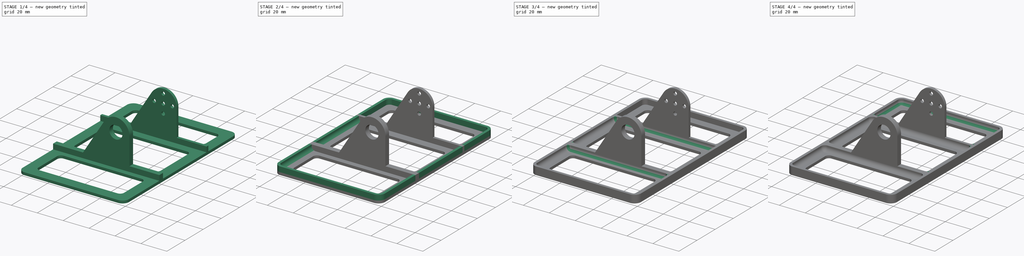
[diagram: build sequence overview — one tinted view per stage of 4, left to right]
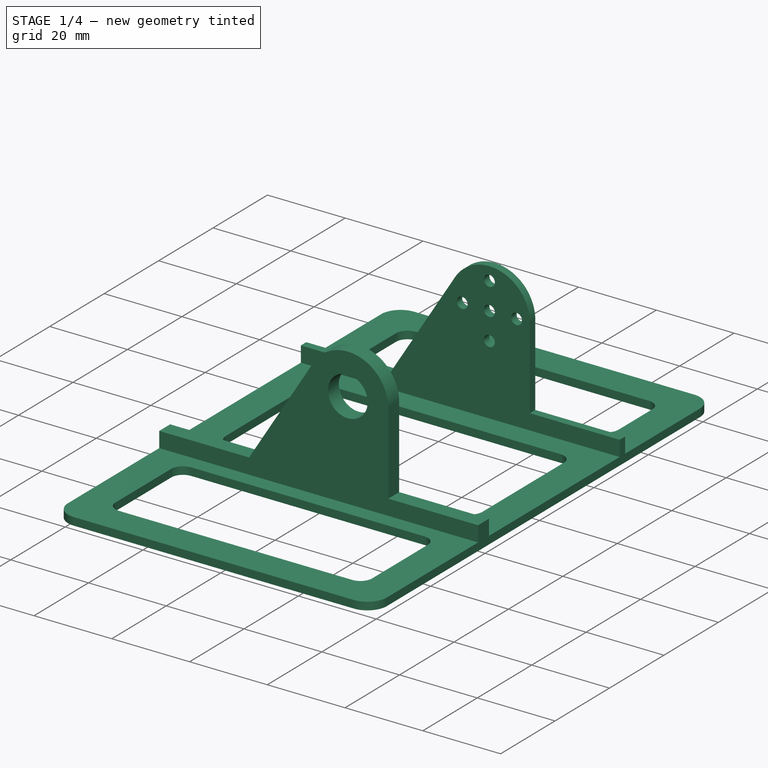
[diagram: stage 1 of 4 — iso view after this stage's code; geometry added in this stage tinted green]
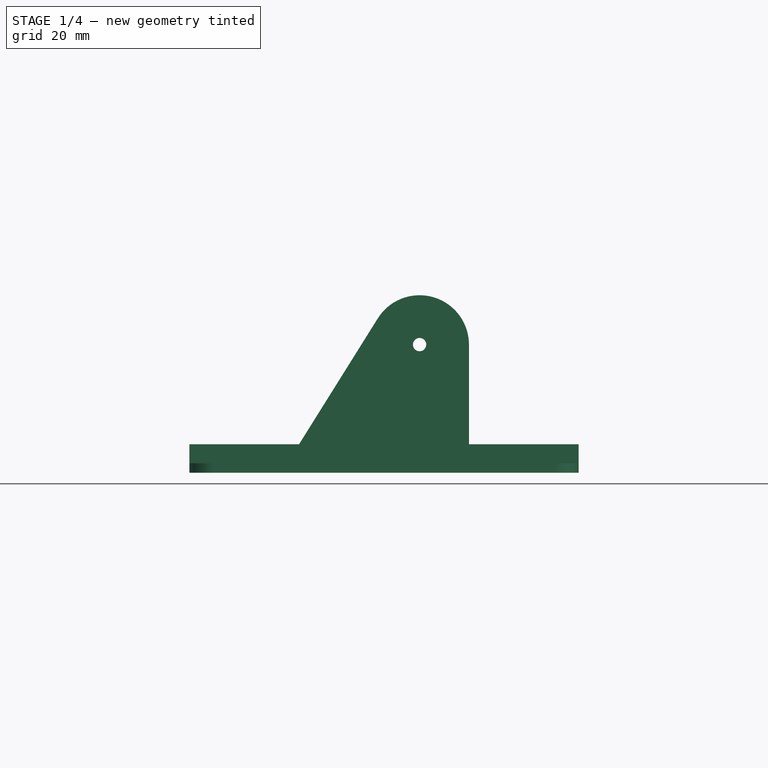
[diagram: stage 1 of 4 — front view after this stage's code; geometry added in this stage tinted green]
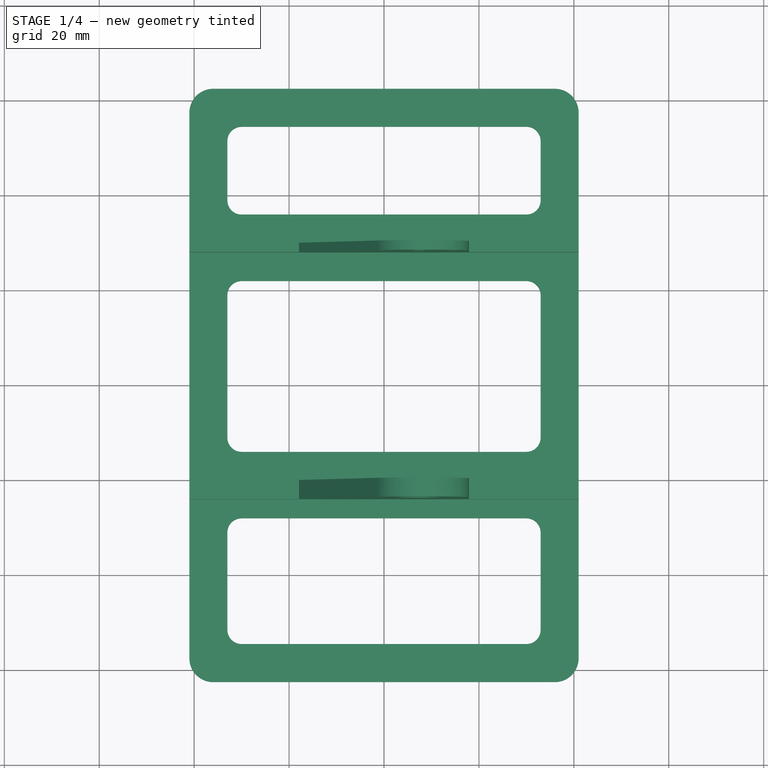
[diagram: stage 1 of 4 — top view after this stage's code; geometry added in this stage tinted green]
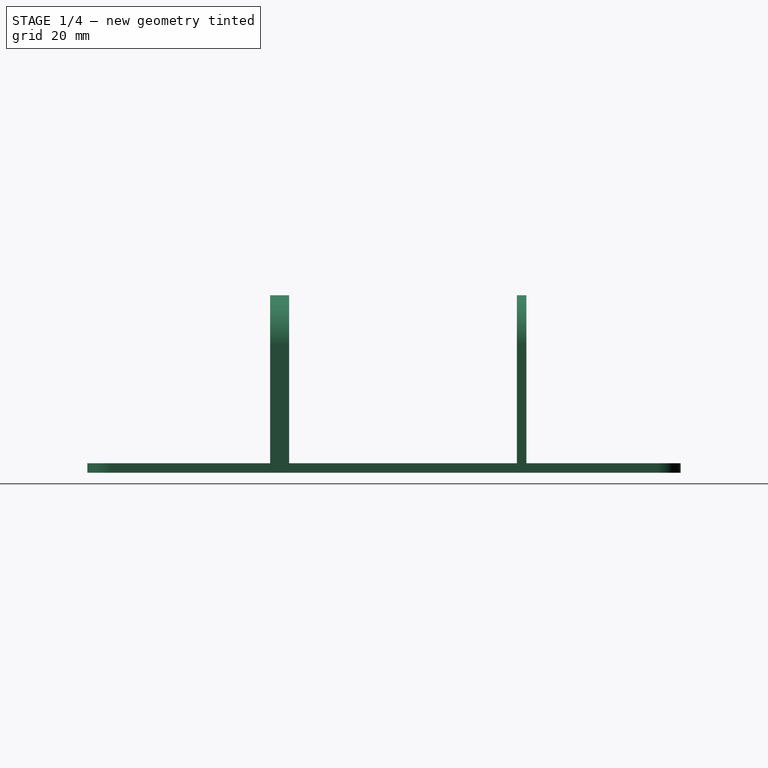
[diagram: stage 1 of 4 — right view after this stage's code; geometry added in this stage tinted green]
FCSTD DOCUMENT  (FreeCAD 0.20R29177 +426 (Git))
Label: 1R_foot_bearing
License: All rights reserved
LicenseURL: http://en.wikipedia.org/wiki/All_rights_reserved
objects: PartDesign::Fillet×8, Sketcher::SketchObject×4, PartDesign::Pad×4, Spreadsheet::Sheet×1, PartDesign::Body×1
note: 29 computed .brp shape members not serialized (recipe doc carries the construction recipe); baked Part::Feature solids carry a one-line shape summary decoded from their .brp

FEATURE [Spreadsheet::Sheet] Spreadsheet
  cells = A2=thickness; B2(thickness)=2; A3=rim_height; B3(rim_height)=4; A4=foot_width; B4(foot_width)=82; A5=foot_length; B5(foot_length)=125; A6=foot_diameter; B6(foot_diameter)=5; A7=foot_whole_middle_length; B7(foot_whole_middle_length)=40; A8=foot_whole_back_length; B8(foot_whole_front_length)=23; A9=foot_whole_front_length; B9(foot_whole_back_length)=13; A10=foot_side_distance; B10(foot_side_distance)=6; A11=foot_frontback_distance; B11(foot_frontback_distance)=6; A13=tarsus_radius; B13(tarsus_radius)=10; A14=tarsus_width; B14(tarsus_width)=35; A15=tarsus_height; B15(tarsus_height)=35; A16=tarsus_length; B16(tarsus_length)=49; A17=tarsus_x_pos; B17(tarsus_x_pos)=7.5; A18=tarsus_front_y_pos; B18(tarsus_front_y_pos)=30; C18=c; D18==-0.5 + B2 + B16 / 2; A19=tarsus_back_y_pos; B19(tarsus_back_y_pos)=-20; C19=c; D19==-(B16 / 2) + 0.5; A21=screw_distance; B21(screw_distance)=7; A22=screw_center_height; B22(screw_center_height)=25; A23=screw_dia; B23(screw_dia)=2.8; A24=axis_dia; B24(axis_dia)=7; A25=axis_dia_bearing; B25(axis_dia_bearing)=10.2
FEATURE [Sketcher::SketchObject] Sketch  label="plate_sketch"
  FullyConstrained = true
  MapMode = 5
  Support = -> [XY_Plane]
  expr: Constraints[23] = Spreadsheet.foot_diameter
  expr: Constraints[24] = Spreadsheet.foot_diameter
  expr: Constraints[25] = Spreadsheet.foot_diameter
  expr: Constraints[3] = Spreadsheet.foot_width
  expr: Constraints[48] = Spreadsheet.tarsus_front_y_pos + Spreadsheet.foot_frontback_distance
  expr: Constraints[49] = Spreadsheet.thickness + Spreadsheet.foot_frontback_distance
  expr: Constraints[4] = Spreadsheet.foot_length
  expr: Constraints[50] = Spreadsheet.thickness + Spreadsheet.foot_side_distance
  expr: Constraints[71] = Spreadsheet.thickness + Spreadsheet.foot_frontback_distance
  expr: Constraints[72] = Spreadsheet.thickness + Spreadsheet.foot_side_distance
  expr: Constraints[73] = -Spreadsheet.tarsus_back_y_pos + Spreadsheet.foot_frontback_distance + Spreadsheet.thickness
  expr: Constraints[94] = Spreadsheet.foot_side_distance + Spreadsheet.thickness
  expr: Constraints[95] = Spreadsheet.thickness + Spreadsheet.foot_frontback_distance * 2
  expr: Constraints[96] = Spreadsheet.thickness + 2 * Spreadsheet.foot_frontback_distance
  sketch-geometry (43):
    g0: LineSegment StartX=-36 StartY=62.5 StartZ=0 EndX=36 EndY=62.5 EndZ=0
    g1: LineSegment StartX=41 StartY=57.5 StartZ=0 EndX=41 EndY=-57.5 EndZ=0
    g2: LineSegment StartX=36 StartY=-62.5 StartZ=0 EndX=-36 EndY=-62.5 EndZ=0
    g3: LineSegment StartX=-41 StartY=-57.5 StartZ=0 EndX=-41 EndY=57.5 EndZ=0
    g4: GeomPoint X=0 Y=-62.5 Z=0
    g5: ArcOfCircle CenterX=36 CenterY=57.5 CenterZ=0 NormalX=0 NormalY=0 NormalZ=1 AngleXU=0 Radius=5 StartAngle=-9e-16 EndAngle=1.5708
    g6: GeomPoint X=41 Y=62.5 Z=0
    g7: ArcOfCircle CenterX=-36 CenterY=57.5 CenterZ=0 NormalX=0 NormalY=0 NormalZ=1 AngleXU=0 Radius=5 StartAngle=1.5708 EndAngle=3.14159
    g8: GeomPoint X=-41 Y=62.5 Z=0
    g9: ArcOfCircle CenterX=-36 CenterY=-57.5 CenterZ=0 NormalX=0 NormalY=0 NormalZ=1 AngleXU=0 Radius=5 StartAngle=3.14159 EndAngle=4.71239
    g10: GeomPoint X=-41 Y=-62.5 Z=0
    g11: ArcOfCircle CenterX=36 CenterY=-57.5 CenterZ=0 NormalX=0 NormalY=0 NormalZ=1 AngleXU=0 Radius=5 StartAngle=4.71239 EndAngle=6.28319
    g12: GeomPoint X=41 Y=-62.5 Z=0
    g13: ArcOfCircle CenterX=-30 CenterY=51.5 CenterZ=0 NormalX=0 NormalY=0 NormalZ=1 AngleXU=0 Radius=3 StartAngle=1.5708 EndAngle=3.14159
    g14: LineSegment StartX=-30 StartY=54.5 StartZ=0 EndX=30 EndY=54.5 EndZ=0
    g15: ArcOfCircle CenterX=30 CenterY=51.5 CenterZ=0 NormalX=0 NormalY=0 NormalZ=1 AngleXU=0 Radius=3 StartAngle=4e-16 EndAngle=1.5708
    g16: LineSegment StartX=33 StartY=51.5 StartZ=0 EndX=33 EndY=39 EndZ=0
    g17: ArcOfCircle CenterX=30 CenterY=39 CenterZ=0 NormalX=0 NormalY=0 NormalZ=1 AngleXU=0 Radius=3 StartAngle=4.71239 EndAngle=6.28319
    g18: LineSegment StartX=30 StartY=36 StartZ=0 EndX=-30 EndY=36 EndZ=0
    g19: ArcOfCircle CenterX=-30 CenterY=39 CenterZ=0 NormalX=0 NormalY=0 NormalZ=1 AngleXU=0 Radius=3 StartAngle=3.14159 EndAngle=4.71239
    g20: LineSegment StartX=-33 StartY=39 StartZ=0 EndX=-33 EndY=51.5 EndZ=0
    g21: GeomPoint X=-33 Y=54.5 Z=0
    g22: GeomPoint X=33 Y=36 Z=0
    g23: ArcOfCircle CenterX=-30 CenterY=-31 CenterZ=0 NormalX=0 NormalY=0 NormalZ=1 AngleXU=0 Radius=3 StartAngle=1.5708 EndAngle=3.14159
    g24: LineSegment StartX=-30 StartY=-28 StartZ=0 EndX=30 EndY=-28 EndZ=0
    g25: ArcOfCircle CenterX=30 CenterY=-31 CenterZ=0 NormalX=0 NormalY=0 NormalZ=1 AngleXU=0 Radius=3 StartAngle=0 EndAngle=1.5708
    g26: LineSegment StartX=33 StartY=-31 StartZ=0 EndX=33 EndY=-51.5 EndZ=0
    g27: ArcOfCircle CenterX=30 CenterY=-51.5 CenterZ=0 NormalX=0 NormalY=0 NormalZ=1 AngleXU=0 Radius=3 StartAngle=4.71239 EndAngle=6.28319
    g28: LineSegment StartX=30 StartY=-54.5 StartZ=0 EndX=-30 EndY=-54.5 EndZ=0
    g29: ArcOfCircle CenterX=-30 CenterY=-51.5 CenterZ=0 NormalX=0 NormalY=0 NormalZ=1 AngleXU=0 Radius=3 StartAngle=3.14159 EndAngle=4.71239
    g30: LineSegment StartX=-33 StartY=-51.5 StartZ=0 EndX=-33 EndY=-31 EndZ=0
    g31: GeomPoint X=-33 Y=-28 Z=0
    g32: GeomPoint X=33 Y=-54.5 Z=0
    g33: ArcOfCircle CenterX=-30 CenterY=19 CenterZ=0 NormalX=0 NormalY=0 NormalZ=1 AngleXU=0 Radius=3 StartAngle=1.5708 EndAngle=3.14159
    g34: LineSegment StartX=-30 StartY=22 StartZ=0 EndX=30 EndY=22 EndZ=0
    g35: ArcOfCircle CenterX=30 CenterY=19 CenterZ=0 NormalX=0 NormalY=0 NormalZ=1 AngleXU=0 Radius=3 StartAngle=7e-16 EndAngle=1.5708
    g36: LineSegment StartX=33 StartY=19 StartZ=0 EndX=33 EndY=-11 EndZ=0
    g37: ArcOfCircle CenterX=30 CenterY=-11 CenterZ=0 NormalX=0 NormalY=0 NormalZ=1 AngleXU=0 Radius=3 StartAngle=4.71239 EndAngle=6.28319
    g38: LineSegment StartX=30 StartY=-14 StartZ=0 EndX=-30 EndY=-14 EndZ=0
    g39: ArcOfCircle CenterX=-30 CenterY=-11 CenterZ=0 NormalX=0 NormalY=0 NormalZ=1 AngleXU=0 Radius=3 StartAngle=3.14159 EndAngle=4.71239
    g40: LineSegment StartX=-33 StartY=-11 StartZ=0 EndX=-33 EndY=19 EndZ=0
    g41: GeomPoint X=-33 Y=22 Z=0
    g42: GeomPoint X=33 Y=-14 Z=0
  constraints (97):
    c: Horizontal(g0)
    c: Horizontal(g2)
    c: Vertical(g1)
    c: DistanceX(g8,g6) = 82
    c: DistanceY(g12,g6) = 125
    c: PointOnObject(g4,g2)
    c: PointOnObject(g4,g-2)
    c: PointOnObject(g6,g0)
    c: PointOnObject(g6,g1)
    c: Tangent(g0,g5) = 1.5708
    c: Tangent(g1,g5) = 1.5708
    c: PointOnObject(g8,g0)
    c: PointOnObject(g8,g3)
    c: Tangent(g0,g7) = 1.5708
    c: Tangent(g3,g7) = 1.5708
    c: PointOnObject(g10,g2)
    c: PointOnObject(g10,g3)
    c: Tangent(g2,g9) = 1.5708
    c: Tangent(g3,g9) = 1.5708
    c: PointOnObject(g12,g1)
    c: PointOnObject(g12,g2)
    c: Tangent(g1,g11) = 1.5708
    c: Tangent(g2,g11) = 1.5708
    c: DistanceY(g2,g9) = 5
    c: DistanceY(g2,g11) = 5
    c: DistanceY(g5,g0) = 5
    c: Symmetric(g3,g1,g-2)
    c: Symmetric(g0,g2,g-1)
    c: Tangent(g13,g14) = 1.5708
    c: Tangent(g14,g15) = 1.5708
    c: Tangent(g15,g16) = 1.5708
    c: Tangent(g16,g17) = 1.5708
    c: Tangent(g17,g18) = 1.5708
    c: Tangent(g18,g19) = 1.5708
    c: Tangent(g19,g20) = 1.5708
    c: Tangent(g20,g13) = 1.5708
    c: Horizontal(g14)
    c: Horizontal(g18)
    c: Vertical(g16)
    c: Vertical(g20)
    c: Equal(g15,g17)
    c: Equal(g17,g19)
    c: PointOnObject(g21,g14)
    c: PointOnObject(g21,g20)
    c: PointOnObject(g22,g16)
    c: PointOnObject(g22,g18)
    c: Symmetric(g13,g15,g-2)
    c: DistanceY(g13,g13) = 3
    c: DistanceY(g-1,g18) = 36
    c: DistanceY(g13,g0) = 8
    c: DistanceX(g3,g13) = 8
    c: Tangent(g23,g24) = 1.5708
    c: Tangent(g24,g25) = 1.5708
    c: Tangent(g25,g26) = 1.5708
    c: Tangent(g26,g27) = 1.5708
    c: Tangent(g27,g28) = 1.5708
    c: Tangent(g28,g29) = 1.5708
    c: Tangent(g29,g30) = 1.5708
    c: Tangent(g30,g23) = 1.5708
    c: Horizontal(g24)
    c: Horizontal(g28)
    c: Vertical(g26)
    c: Vertical(g30)
    c: Equal(g25,g27)
    c: Equal(g27,g29)
    c: PointOnObject(g31,g24)
    c: PointOnObject(g31,g30)
    c: PointOnObject(g32,g26)
    c: PointOnObject(g32,g28)
    c: Symmetric(g23,g25,g-2)
    c: DistanceY(g23,g23) = 3
    c: DistanceY(g2,g28) = 8
    c: DistanceX(g3,g29) = 8
    c: DistanceY(g23,g-1) = 28
    c: Tangent(g33,g34) = 1.5708
    c: Tangent(g34,g35) = 1.5708
    c: Tangent(g35,g36) = 1.5708
    c: Tangent(g36,g37) = 1.5708
    c: Tangent(g37,g38) = 1.5708
    c: Tangent(g38,g39) = 1.5708
    c: Tangent(g39,g40) = 1.5708
    c: Tangent(g40,g33) = 1.5708
    c: Horizontal(g34)
    c: Horizontal(g38)
    c: Vertical(g36)
    c: Vertical(g40)
    c: Equal(g35,g37)
    c: Equal(g37,g39)
    c: PointOnObject(g41,g34)
    c: PointOnObject(g41,g40)
    c: PointOnObject(g42,g36)
    c: PointOnObject(g42,g38)
    c: Symmetric(g33,g35,g-2)
    c: DistanceY(g33,g33) = 3
    c: DistanceX(g3,g39) = 8
    c: DistanceY(g24,g37) = 14
    c: DistanceY(g34,g17) = 14
FEATURE [PartDesign::Pad] Pad  label="foot_plate"
  Direction = (0,0,1)
  Length = 2
  Length2 = 10
  Profile = -> Sketch
  ReferenceAxis = -> Sketch [N_Axis]
  Type = 0
  expr: Length = Spreadsheet.thickness
FEATURE [Sketcher::SketchObject] Sketch001  label="back_tarsus_sketch"
  ExternalGeometry = -> [Pad]
  FullyConstrained = true
  Placement = pos=(7.5,-20,0) rot=(1,0,0;1.5708rad)
  Support = -> [XZ_Plane]
  expr: .Placement.Base.x = Spreadsheet.tarsus_x_pos
  expr: .Placement.Base.y = Spreadsheet.tarsus_back_y_pos
  expr: Constraints[10] = Spreadsheet.foot_width
  expr: Constraints[13] = Spreadsheet.rim_height
  expr: Constraints[22] = Spreadsheet.axis_dia_bearing
  expr: Constraints[23] = Spreadsheet.screw_center_height
  expr: Constraints[26] = Spreadsheet.screw_distance + Spreadsheet.thickness + Spreadsheet.screw_dia / 2
  expr: Constraints[27] = Spreadsheet.thickness
  sketch-geometry (10):
    g0: LineSegment StartX=10.4 StartY=27 StartZ=0 EndX=10.4 EndY=6 EndZ=0
    g1: LineSegment StartX=-25.4 StartY=6 StartZ=0 EndX=-8.81756 EndY=32.5146 EndZ=0
    g2: ArcOfCircle CenterX=0 CenterY=27 CenterZ=0 NormalX=0 NormalY=0 NormalZ=1 AngleXU=0 Radius=10.4 StartAngle=0 EndAngle=2.5827
    g3: GeomPoint X=0 Y=2 Z=0
    g4: LineSegment StartX=-48.5 StartY=2 StartZ=0 EndX=33.5 EndY=2 EndZ=0
    g5: LineSegment StartX=33.5 StartY=2 StartZ=0 EndX=33.5 EndY=6 EndZ=0
    g6: LineSegment StartX=33.5 StartY=6 StartZ=0 EndX=10.4 EndY=6 EndZ=0
    g7: LineSegment StartX=-25.4 StartY=6 StartZ=0 EndX=-48.5 EndY=6 EndZ=0
    g8: LineSegment StartX=-48.5 StartY=6 StartZ=0 EndX=-48.5 EndY=2 EndZ=0
    g9: Circle CenterX=0 CenterY=27 CenterZ=0 NormalX=0 NormalY=0 NormalZ=1 AngleXU=0 Radius=5.1
  constraints (29):
    c: Vertical(g0)
    c: PointOnObject(g3,g-2)
    c: Horizontal(g4)
    c: Coincident(g5,g4)
    c: Vertical(g5)
    c: Horizontal(g6)
    c: Horizontal(g7)
    c: Coincident(g8,g7)
    c: Coincident(g8,g4)
    c: Vertical(g8)
    c: DistanceX(g4,g4) = 82
    c: DistanceX(g3,g4) = 33.5
    c: Coincident(g6,g5)
    c: DistanceY(g4,g5) = 4
    c: Equal(g5,g8)
    c: Equal(g7,g6)
    c: Coincident(g0,g6)
    c: Coincident(g1,g7)
    c: Tangent(g1,g2) = 1.5708
    c: Coincident(g2,g0)
    c: PointOnObject(g2,g-2)
    c: PointOnObject(g9,g-2)
    c: Diameter(g9) = 10.2
    c: DistanceY(g3,g9) = 25
    c: Horizontal(g0,g9)
    c: PointOnObject(g3,g4)
    c: DistanceX(g9,g0) = 10.4
    c: DistanceY(g-1,g4) = 2
    c: Horizontal(g2,g0)
FEATURE [PartDesign::Pad] Pad001  label="back_tarsus"
  BaseFeature = -> Pad
  Direction = (0,-1,2e-16)
  Length = 4
  Length2 = 0
  Profile = -> Sketch001
  ReferenceAxis = -> Sketch001 [N_Axis]
  Type = 0
  expr: Length = 4
FEATURE [Sketcher::SketchObject] Sketch003  label="front_tarsus_sketch"
  FullyConstrained = true
  Placement = pos=(7.5,30,0) rot=(1,0,0;1.5708rad)
  Support = -> [XZ_Plane]
  expr: .Placement.Base.x = Spreadsheet.tarsus_x_pos
  expr: .Placement.Base.y = Spreadsheet.tarsus_front_y_pos
  expr: Constraints[0] = Spreadsheet.thickness
  expr: Constraints[10] = Spreadsheet.screw_distance
  expr: Constraints[1] = Spreadsheet.screw_dia
  expr: Constraints[20] = Spreadsheet.rim_height
  expr: Constraints[22] = Spreadsheet.foot_width
  expr: Constraints[24] = Spreadsheet.screw_center_height
  expr: Constraints[27] = Spreadsheet.screw_distance
  expr: Constraints[30] = Spreadsheet.screw_distance
  expr: Constraints[40] = Spreadsheet.screw_distance + Spreadsheet.thickness + Spreadsheet.screw_dia / 2
  expr: Constraints[42] = Spreadsheet.screw_distance + Spreadsheet.thickness + Spreadsheet.screw_dia / 2
  expr: Constraints[4] = Spreadsheet.screw_dia
  expr: Constraints[5] = Spreadsheet.screw_dia
  expr: Constraints[6] = Spreadsheet.screw_dia
  expr: Constraints[7] = Spreadsheet.screw_dia
  expr: Constraints[9] = Spreadsheet.screw_distance
  sketch-geometry (16):
    g0: LineSegment StartX=33.5 StartY=2 StartZ=0 EndX=-48.5 EndY=2 EndZ=0
    g1: ArcOfCircle CenterX=0 CenterY=27 CenterZ=0 NormalX=0 NormalY=0 NormalZ=1 AngleXU=0 Radius=10.4 StartAngle=-2.283e-13 EndAngle=2.5827
    g2: Circle CenterX=0 CenterY=27 CenterZ=0 NormalX=0 NormalY=0 NormalZ=1 AngleXU=0 Radius=1.4
    g3: Circle CenterX=-7 CenterY=27 CenterZ=0 NormalX=0 NormalY=0 NormalZ=1 AngleXU=0 Radius=1.4
    g4: Circle CenterX=0 CenterY=20 CenterZ=0 NormalX=0 NormalY=0 NormalZ=1 AngleXU=0 Radius=1.4
    g5: Circle CenterX=7 CenterY=27 CenterZ=0 NormalX=0 NormalY=0 NormalZ=1 AngleXU=0 Radius=1.4
    g6: Circle CenterX=0 CenterY=34 CenterZ=0 NormalX=0 NormalY=0 NormalZ=1 AngleXU=0 Radius=1.4
    g7: GeomPoint X=0 Y=2 Z=0
    g8: GeomPoint X=-25.4 Y=6 Z=0
    g9: LineSegment StartX=10.4 StartY=27 StartZ=0 EndX=10.4 EndY=6 EndZ=0
    g10: LineSegment StartX=-8.81756 StartY=32.5146 StartZ=0 EndX=-25.4 EndY=6 EndZ=0
    g11: LineSegment StartX=-25.4 StartY=6 StartZ=0 EndX=-48.5 EndY=6 EndZ=0
    g12: LineSegment StartX=-48.5 StartY=6 StartZ=0 EndX=-48.5 EndY=2 EndZ=0
    g13: LineSegment StartX=10.4 StartY=6 StartZ=0 EndX=33.5 EndY=6 EndZ=0
    g14: LineSegment StartX=33.5 StartY=6 StartZ=0 EndX=33.5 EndY=2 EndZ=0
    g15: GeomPoint X=0 Y=37.4 Z=0
  constraints (44):
    c: DistanceY(g-1,g0) = 2
    c: Diameter(g2) = 2.8
    c: PointOnObject(g4,g-2)
    c: PointOnObject(g6,g-2)
    c: Diameter(g3) = 2.8
    c: Diameter(g5) = 2.8
    c: Diameter(g4) = 2.8
    c: Diameter(g6) = 2.8
    c: PointOnObject(g7,g0)
    c: DistanceX(g3,g1) = 7
    c: DistanceX(g1,g5) = 7
    c: PointOnObject(g1,g-2)
    c: PointOnObject(g7,g-2)
    c: Coincident(g9,g1)
    c: Vertical(g9)
    c: Coincident(g10,g8)
    c: Coincident(g11,g10)
    c: Horizontal(g11)
    c: Coincident(g12,g11)
    c: Coincident(g12,g0)
    c: DistanceY(g0,g11) = 4
    c: Vertical(g12)
    c: DistanceX(g0,g0) = 82
    c: DistanceX(g4,g0) = 33.5
    c: DistanceY(g7,g2) = 25
    c: Horizontal(g3,g2)
    c: Horizontal(g2,g5)
    c: DistanceY(g4,g2) = 7
    c: Horizontal(g0)
    c: Vertical(g2,g7)
    c: DistanceY(g2,g6) = 7
    c: Coincident(g13,g9)
    c: Horizontal(g13)
    c: Coincident(g14,g13)
    c: Coincident(g14,g0)
    c: Vertical(g14)
    c: Equal(g12,g14)
    c: Tangent(g10,g1) = -1.5708
    c: Horizontal(g1,g2)
    c: PointOnObject(g15,g1)
    c: DistanceY(g2,g15) = 10.4
    c: Equal(g13,g11)
    c: DistanceX(g2,g1) = 10.4
    c: Vertical(g15,g2)
FEATURE [PartDesign::Pad] Pad003  label="front_tarsus"
  BaseFeature = -> Pad001
  Direction = (0,-1,2e-16)
  Length = 2
  Length2 = 0
  Profile = -> Sketch003
  ReferenceAxis = -> Sketch003 [N_Axis]
  Type = 0
  expr: Length = 2
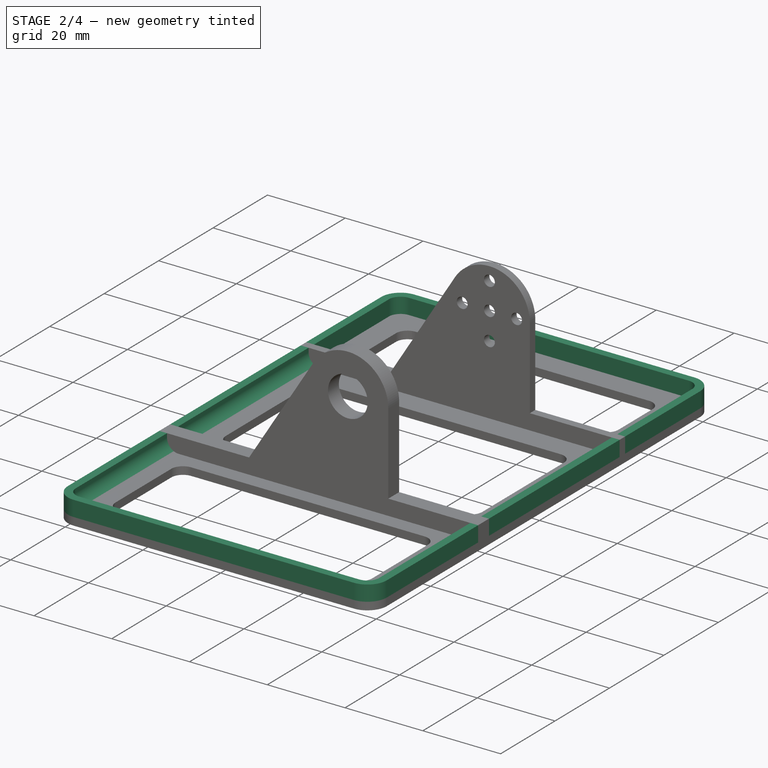
[diagram: stage 2 of 4 — iso view after this stage's code; geometry added in this stage tinted green]
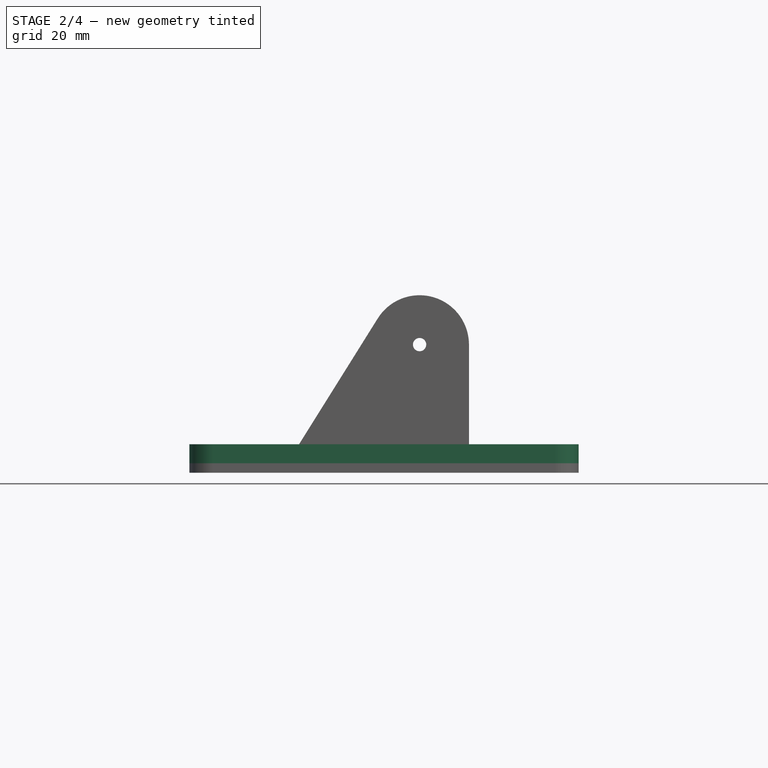
[diagram: stage 2 of 4 — front view after this stage's code; geometry added in this stage tinted green]
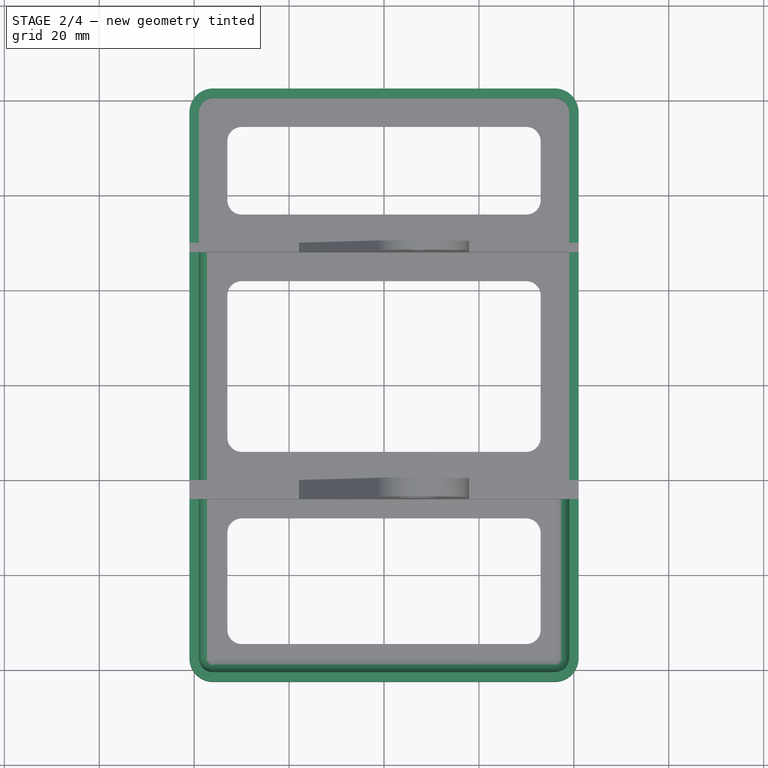
[diagram: stage 2 of 4 — top view after this stage's code; geometry added in this stage tinted green]
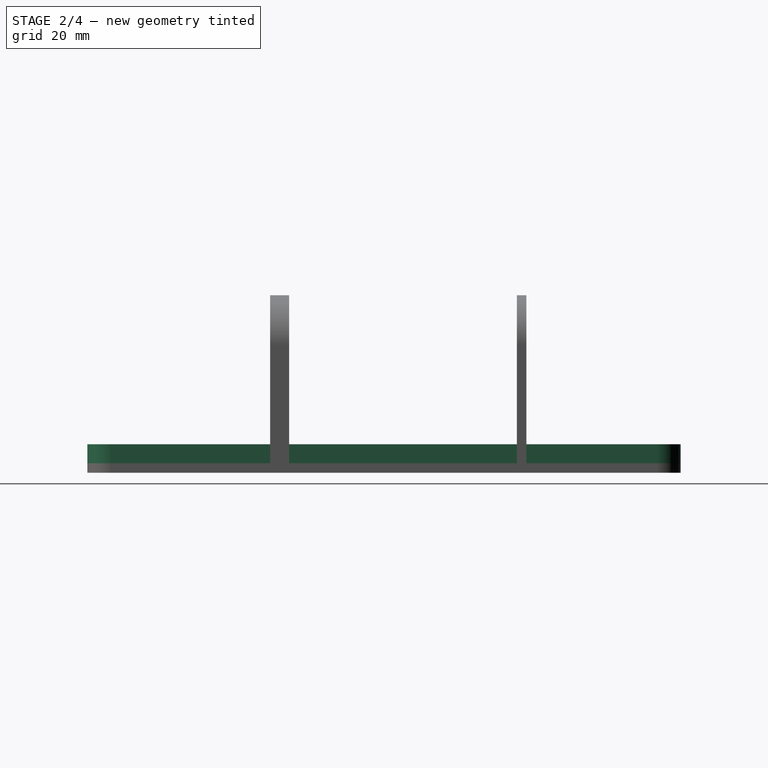
[diagram: stage 2 of 4 — right view after this stage's code; geometry added in this stage tinted green]
FEATURE [Sketcher::SketchObject] Sketch004  label="outerRimSketch"
  ExternalGeometry = -> [Pad003]
  FullyConstrained = true
  MapMode = 5
  Placement = pos=(0,0,2) rot=(0,0,1;0rad)
  Support = -> [Pad003]
  expr: Constraints[32] = Spreadsheet.thickness
  expr: Constraints[33] = Spreadsheet.thickness
  expr: Constraints[37] = Spreadsheet.thickness
  sketch-geometry (16):
    g0: LineSegment StartX=-36 StartY=62.5 StartZ=0 EndX=36 EndY=62.5 EndZ=0
    g1: LineSegment StartX=-41 StartY=57.5 StartZ=0 EndX=-41 EndY=-57.5 EndZ=0
    g2: ArcOfCircle CenterX=-36 CenterY=57.5 CenterZ=0 NormalX=0 NormalY=0 NormalZ=1 AngleXU=0 Radius=5 StartAngle=1.5708 EndAngle=3.14159
    g3: ArcOfCircle CenterX=-36 CenterY=-57.5 CenterZ=0 NormalX=0 NormalY=0 NormalZ=1 AngleXU=0 Radius=5 StartAngle=3.14159 EndAngle=4.71239
    g4: LineSegment StartX=-36 StartY=-62.5 StartZ=0 EndX=36 EndY=-62.5 EndZ=0
    g5: ArcOfCircle CenterX=36 CenterY=-57.5 CenterZ=0 NormalX=0 NormalY=0 NormalZ=1 AngleXU=0 Radius=5 StartAngle=4.71239 EndAngle=6.28319
    g6: LineSegment StartX=41 StartY=-57.5 StartZ=0 EndX=41 EndY=57.5 EndZ=0
    g7: ArcOfCircle CenterX=36 CenterY=57.5 CenterZ=0 NormalX=0 NormalY=0 NormalZ=1 AngleXU=0 Radius=5 StartAngle=6e-16 EndAngle=1.5708
    g8: LineSegment StartX=-36 StartY=60.5 StartZ=0 EndX=36 EndY=60.5 EndZ=0
    g9: LineSegment StartX=39 StartY=57.5 StartZ=0 EndX=39 EndY=-57.5 EndZ=0
    g10: LineSegment StartX=36 StartY=-60.5 StartZ=0 EndX=-36 EndY=-60.5 EndZ=0
    g11: LineSegment StartX=-39 StartY=-57.5 StartZ=0 EndX=-39 EndY=57.5 EndZ=0
    g12: ArcOfCircle CenterX=-36 CenterY=57.5 CenterZ=0 NormalX=0 NormalY=0 NormalZ=1 AngleXU=0 Radius=3 StartAngle=1.5708 EndAngle=3.14159
    g13: ArcOfCircle CenterX=36 CenterY=57.5 CenterZ=0 NormalX=0 NormalY=0 NormalZ=1 AngleXU=0 Radius=3 StartAngle=3e-16 EndAngle=1.5708
    g14: ArcOfCircle CenterX=36 CenterY=-57.5 CenterZ=0 NormalX=0 NormalY=0 NormalZ=1 AngleXU=0 Radius=3 StartAngle=4.71239 EndAngle=6.28319
    g15: ArcOfCircle CenterX=-36 CenterY=-57.5 CenterZ=0 NormalX=0 NormalY=0 NormalZ=1 AngleXU=0 Radius=3 StartAngle=3.14159 EndAngle=4.71239
  constraints (40):
    c: Coincident(g0,g-8)
    c: Coincident(g2,g0)
    c: Coincident(g1,g-9)
    c: Coincident(g2,g1)
    c: Coincident(g0,g-8)
    c: Coincident(g7,g0)
    c: Coincident(g6,g-11)
    c: Coincident(g7,g6)
    c: Coincident(g6,g-11)
    c: Coincident(g6,g5)
    c: Coincident(g-10,g4)
    c: Coincident(g4,g5)
    c: Coincident(g-9,g1)
    c: Coincident(g3,g1)
    c: Coincident(g4,g-10)
    c: Coincident(g3,g4)
    c: Horizontal(g3,g5)
    c: Vertical(g3,g2)
    c: Horizontal(g2,g7)
    c: Horizontal(g3,g-6)
    c: Horizontal(g8)
    c: Horizontal(g10)
    c: Vertical(g9)
    c: Vertical(g11)
    c: Tangent(g8,g12) = 1.5708
    c: Tangent(g11,g12) = 1.5708
    c: Tangent(g8,g13) = 1.5708
    c: Tangent(g9,g13) = 1.5708
    c: Tangent(g9,g14) = 1.5708
    c: Tangent(g10,g14) = 1.5708
    c: Tangent(g10,g15) = 1.5708
    c: Tangent(g11,g15) = 1.5708
    c: DistanceY(g3,g10) = 2
    c: DistanceX(g1,g11) = 2
    c: Horizontal(g15,g14)
    c: Vertical(g15,g12)
    c: Horizontal(g11,g1)
    c: DistanceY(g8,g0) = 2
    c: Vertical(g8,g0)
    c: Horizontal(g9,g6)
FEATURE [PartDesign::Pad] Pad004  label="outerRimPad"
  BaseFeature = -> Pad003
  Direction = (0,0,1)
  Length = 4
  Length2 = 10
  Profile = -> Sketch004
  ReferenceAxis = -> Sketch004 [N_Axis]
  Type = 0
  expr: Length = Spreadsheet.rim_height
FEATURE [PartDesign::Fillet] Fillet
  Base = -> Pad004 [Edge146]
  BaseFeature = -> Pad004
  Radius = 3
  SupportTransform = false
  UseAllEdges = false
FEATURE [PartDesign::Fillet] Fillet001
  Base = -> Fillet [Edge203]
  BaseFeature = -> Fillet
  Radius = 3
  SupportTransform = false
  UseAllEdges = false
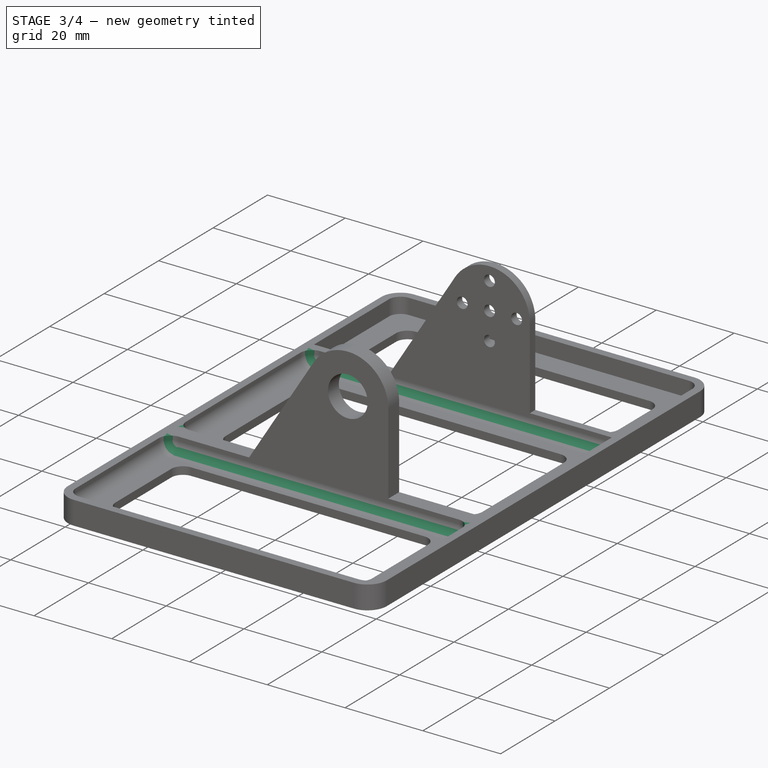
[diagram: stage 3 of 4 — iso view after this stage's code; geometry added in this stage tinted green]
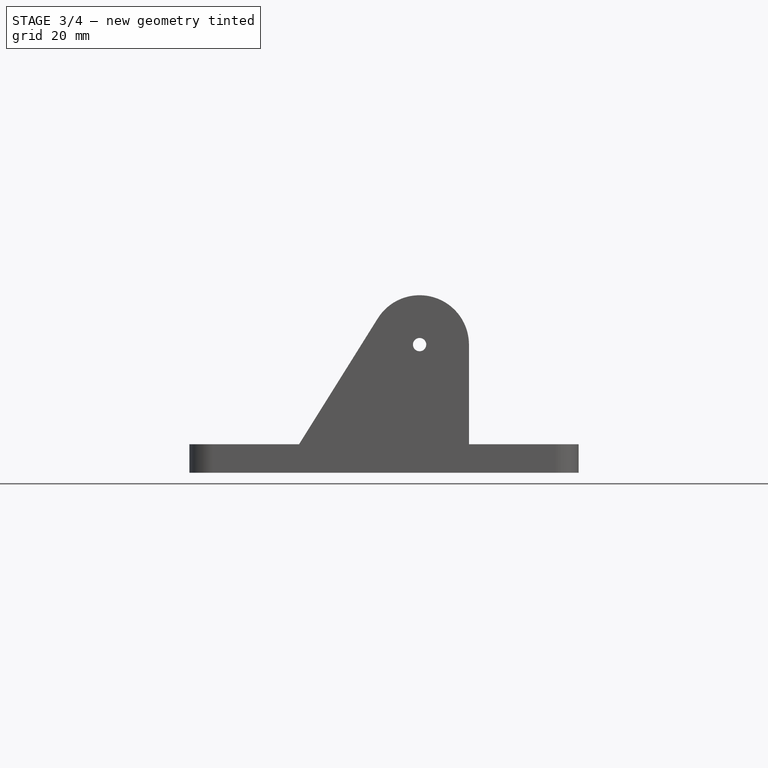
[diagram: stage 3 of 4 — front view after this stage's code; geometry added in this stage tinted green]
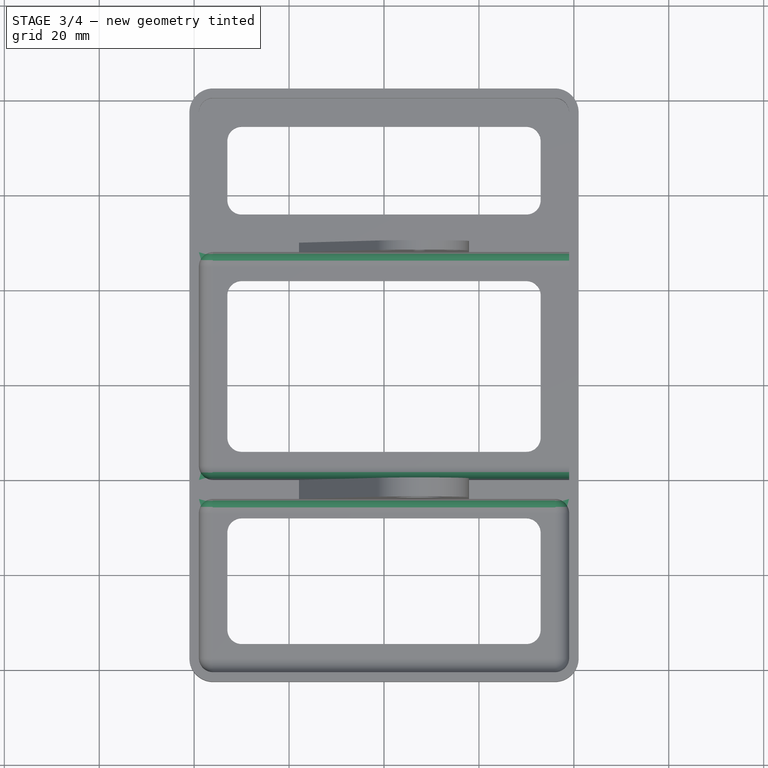
[diagram: stage 3 of 4 — top view after this stage's code; geometry added in this stage tinted green]
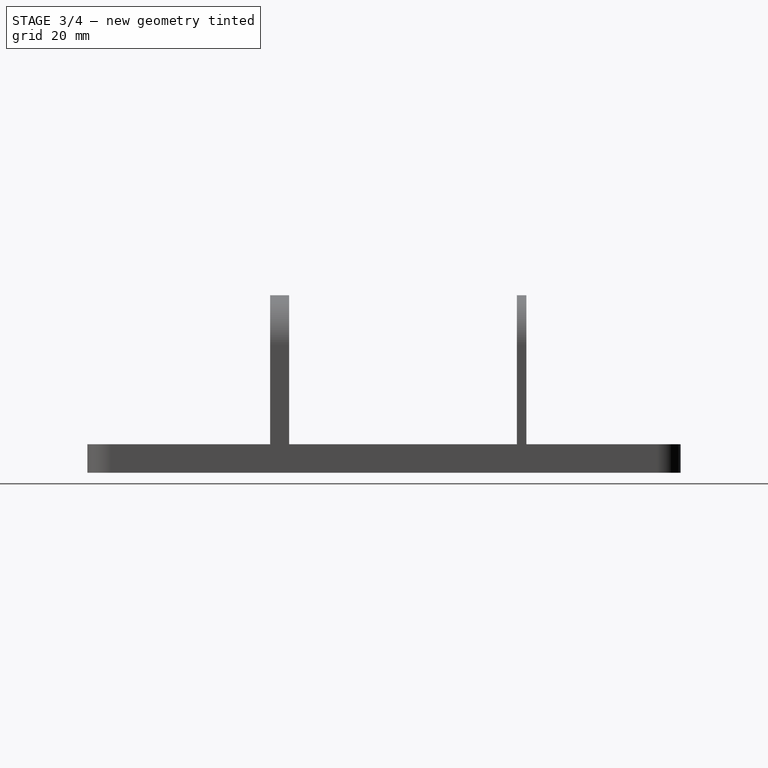
[diagram: stage 3 of 4 — right view after this stage's code; geometry added in this stage tinted green]
FEATURE [PartDesign::Fillet] Fillet002
  Base = -> Fillet001 [Edge4]
  BaseFeature = -> Fillet001
  Radius = 3
  SupportTransform = false
  UseAllEdges = false
FEATURE [PartDesign::Fillet] Fillet003
  Base = -> Fillet002 [Edge99]
  BaseFeature = -> Fillet002
  Radius = 3
  SupportTransform = false
  UseAllEdges = false
FEATURE [PartDesign::Fillet] Fillet004
  Base = -> Fillet003 [Edge28]
  BaseFeature = -> Fillet003
  Radius = 3
  SupportTransform = false
  UseAllEdges = false
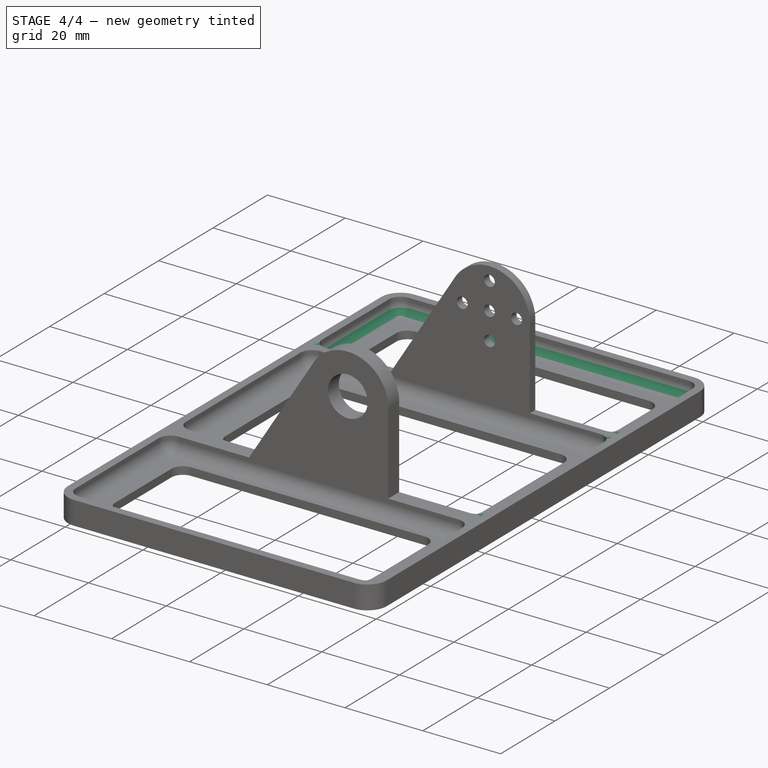
[diagram: stage 4 of 4 — iso view after this stage's code; geometry added in this stage tinted green]
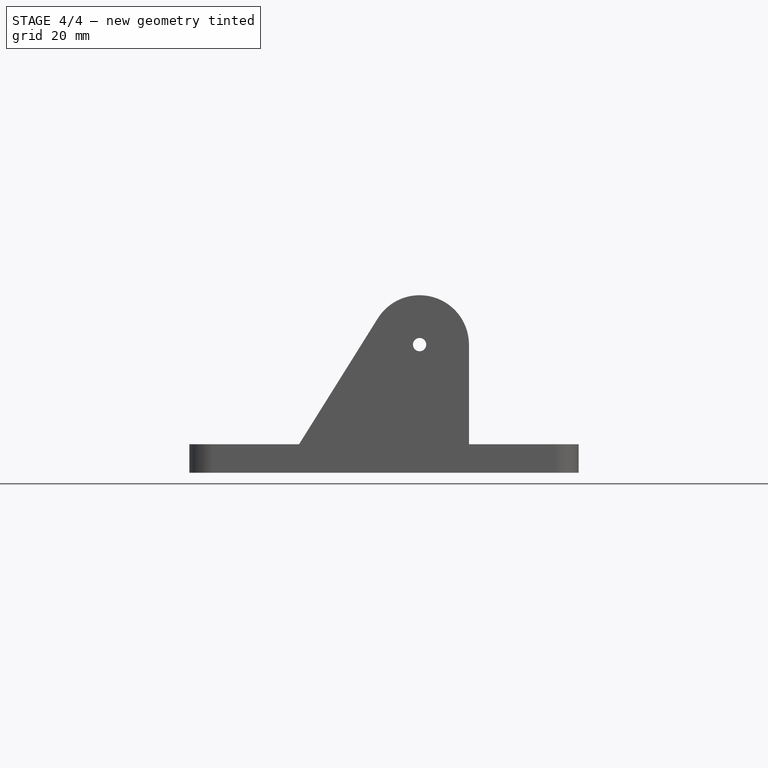
[diagram: stage 4 of 4 — front view after this stage's code; geometry added in this stage tinted green]
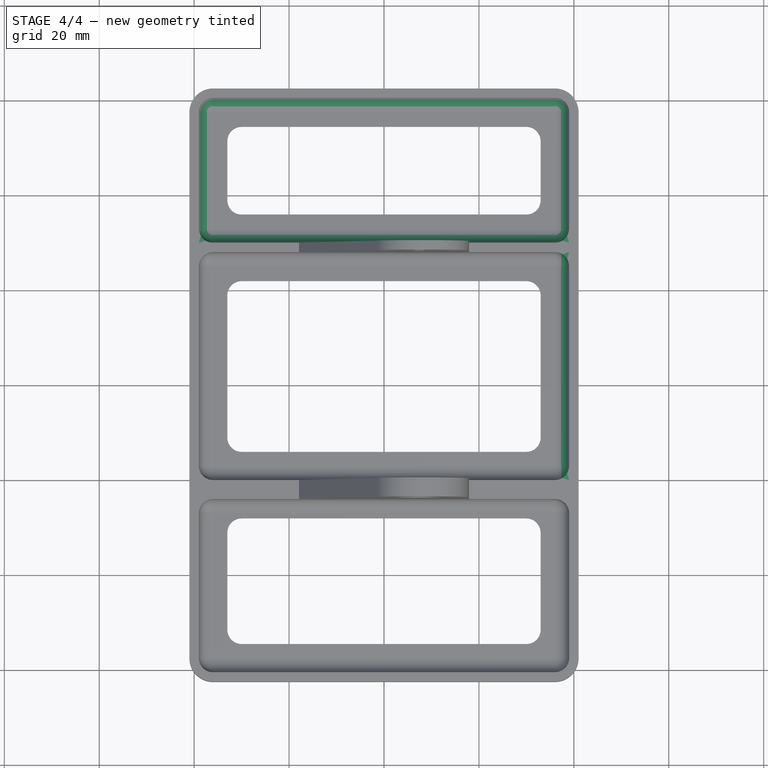
[diagram: stage 4 of 4 — top view after this stage's code; geometry added in this stage tinted green]
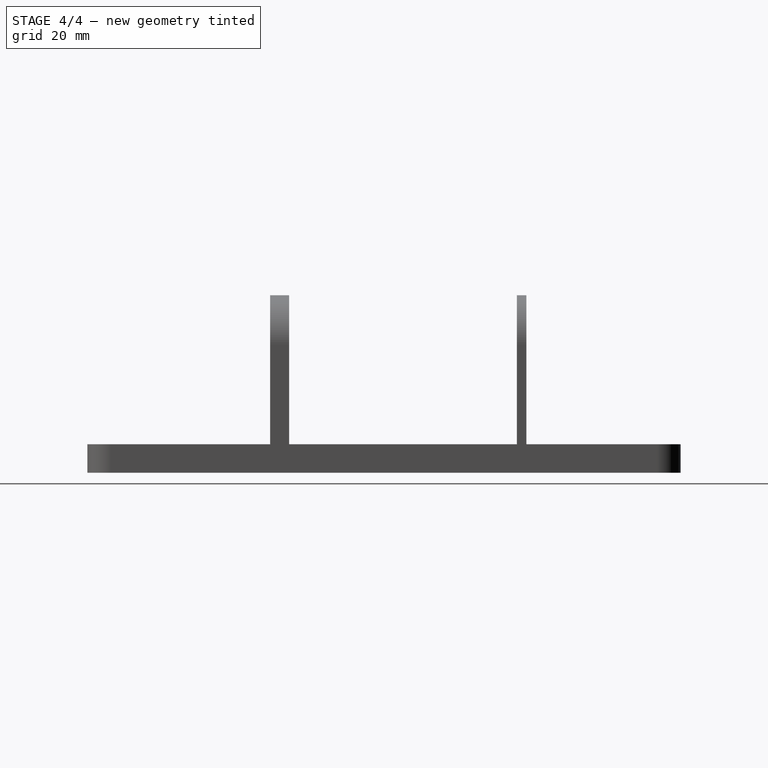
[diagram: stage 4 of 4 — right view after this stage's code; geometry added in this stage tinted green]
FEATURE [PartDesign::Fillet] Fillet005
  Base = -> Fillet004 [Edge113]
  BaseFeature = -> Fillet004
  Radius = 3
  SupportTransform = false
  UseAllEdges = false
FEATURE [PartDesign::Fillet] Fillet006
  Base = -> Fillet005 [Edge285]
  BaseFeature = -> Fillet005
  Radius = 3
  SupportTransform = false
  UseAllEdges = false
FEATURE [PartDesign::Fillet] Fillet007
  Base = -> Fillet006 [Edge4]
  BaseFeature = -> Fillet006
  Radius = 3
  SupportTransform = false
  UseAllEdges = false
FEATURE [PartDesign::Body] Body
  Group = -> [Sketch,Pad,Sketch001,Pad001,Pad003,Sketch003,Sketch004,Pad004,Fillet,Fillet001,Fillet002,Fillet003,Fillet004,Fillet005,Fillet006,Fillet007]
  Origin = -> Origin
  Tip = -> Fillet007
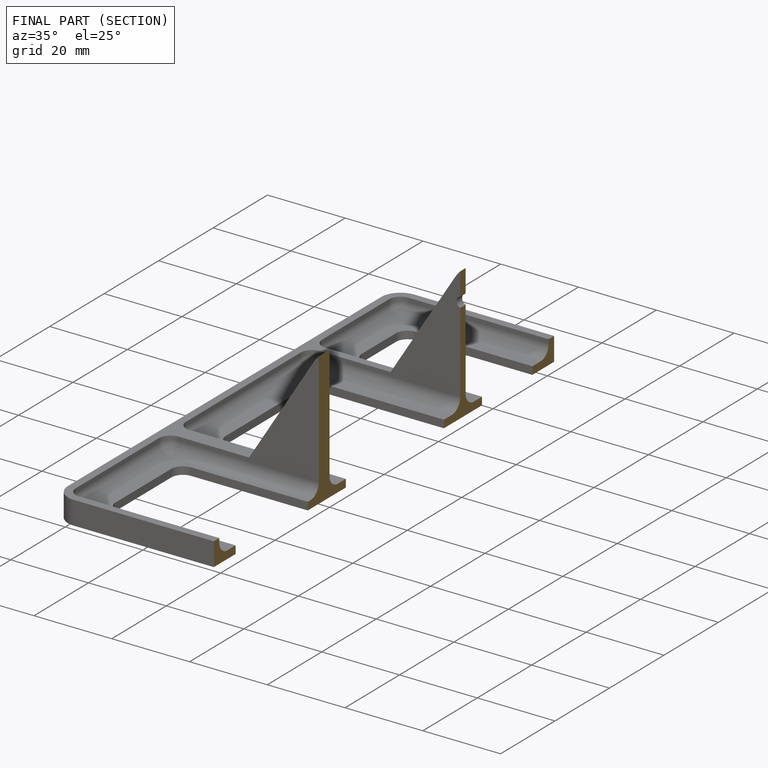
[diagram: finished part — half-section view (interior)]
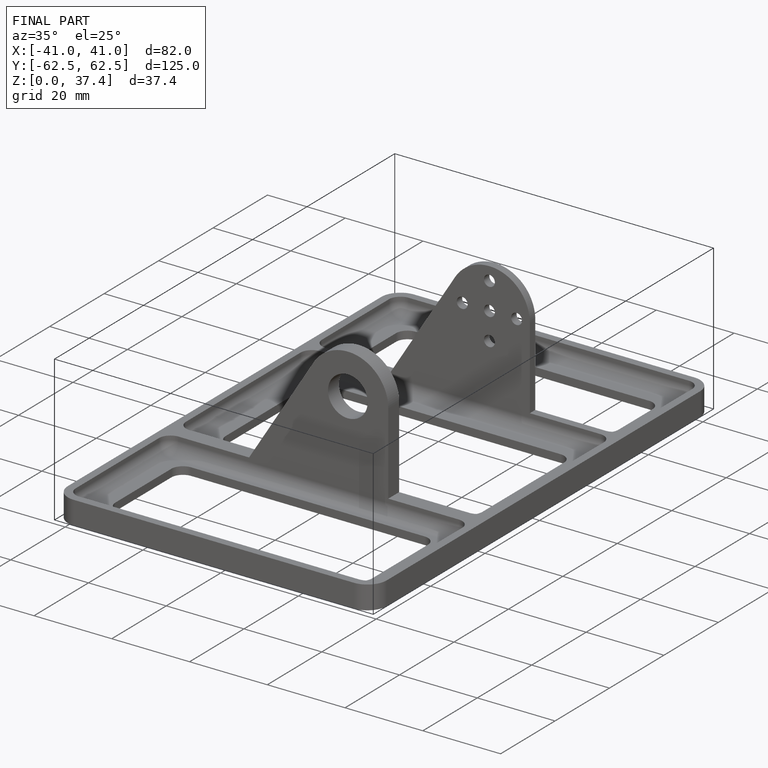
[diagram: finished part — iso view with bounding-box wireframe]
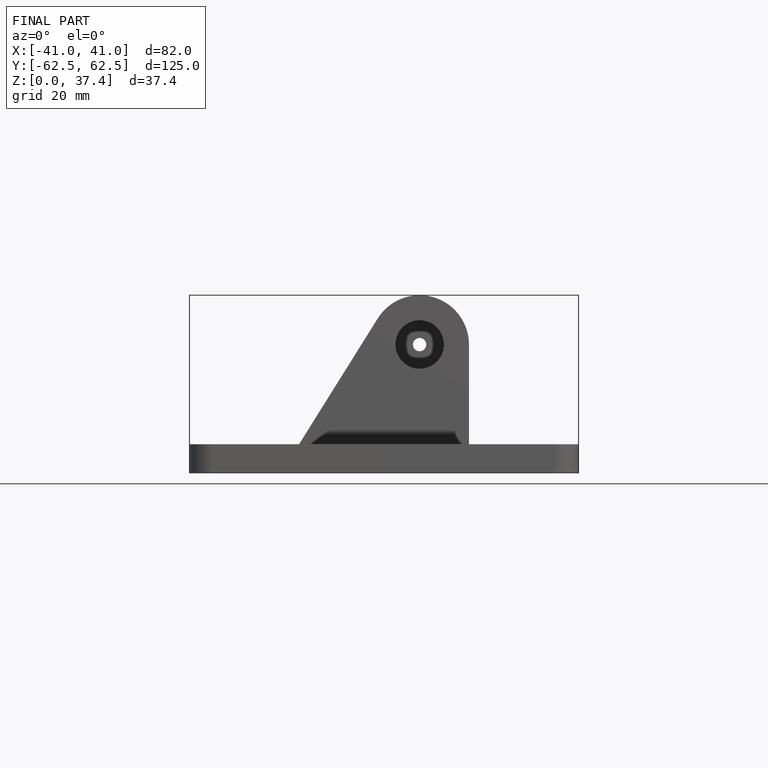
[diagram: finished part — front view with bounding-box wireframe]
